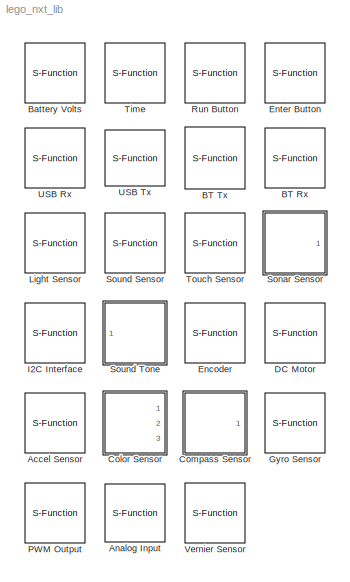
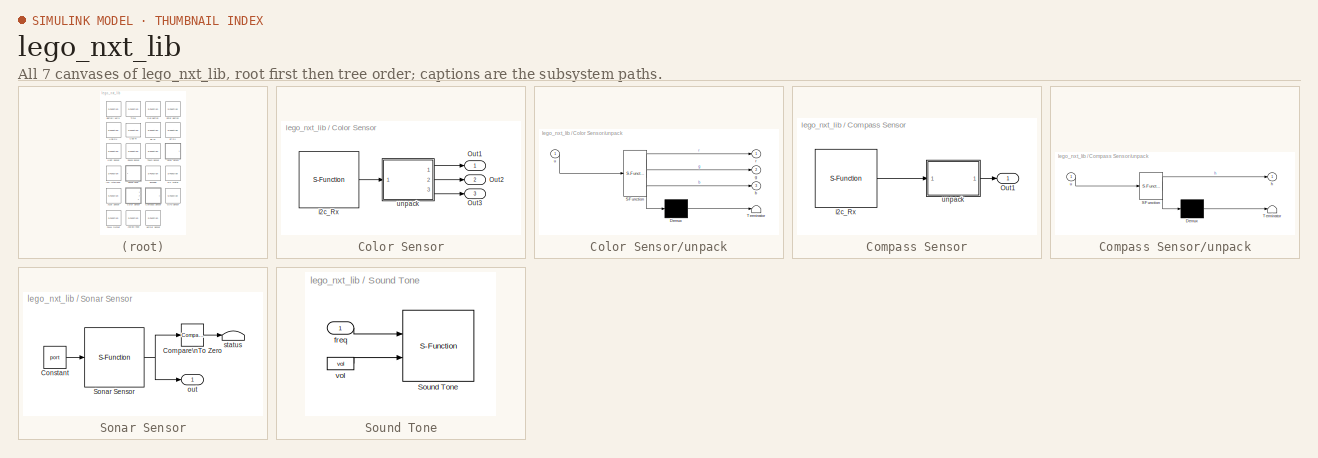
[diagram: thumbnail index - all 7 canvases of the model, root first then tree order]
MODEL lego_nxt_lib
KIND library
BLOCK [S-Function] Accel Sensor
  EnableBusSupport = off
  FunctionName = sfun_OSEK_HT_accel
  MaskCallbackString = |
  MaskDescription = Outputs acceleration data in three axes (x, y and z) [uint16] representing forward, lateral and vertical directions respectively.  The outputs are given in the range 0 to 1023 with a scale factor of ~200 units per g.
  MaskDisplay = image(imread('ht.jpg'))\nport_label('output', 1, 'x')\nport_label('output', 2, 'y')\nport_label('output', 3, 'z')\ntext(0.1,0.15,'1')
  MaskEnableString = on,on
  MaskHelp = The <b>Acceleration Sensor</b> block is an interface for the HiTechnic\nAccelerometer for the Lego NXT brick.  This sensor can detect values in\nthree axes: x (or pitch), y (or roll) and z.  Pitch represents the angle \nabove or below the horizontal, while roll represents the angle left or\nright of perfectly vertical.  The z-axis represents lean forward or\nbackward.
  MaskIconFrame = on
  MaskIconOpaque = on
  MaskIconRotate = none
  MaskIconUnits = normalized
  MaskInitialization = port_disp(gcb)
  MaskPortRotate = default
  MaskPromptString = Port: |Sample time (-1 for inherited):
  MaskSelfModifiable = on
  MaskStyleString = popup(Port 1|Port 2|Port 3|Port 4),edit
  MaskToolTipString = on,on
  MaskTunableValueString = on,on
  MaskType = HiTechnic Acceleration Sensor
  MaskValueString = Port 1|-1
  MaskVariables = port=@1;st=@2;
  MaskVisibilityString = on,on
  Parameters = port, st
  Ports = [0, 3]
  SID = 1
BLOCK [S-Function] Analog Input
  EnableBusSupport = off
  FunctionName = sfun_OSEK_GAI
  MaskCallbackString = |set_param(gcb,'MaskEnables',{'on','on','off','off','off','on'});\ntemp = get_param(gcb, 'MaskValues');\nswitch get_param(gcb,'units')\n%NOTE: These are in no particular order as of now\n    case 'Raw ADC count [uint16]; range [0 1023]'\n        temp{3} = '1';\n        temp{4} = '0';\n        temp{5} = '0';\n    case 'Voltage [int16]; range [0 5]V'\n        temp{3} = '.00489';\n        temp{4} = '...<+518ch>
  MaskDescription = y = ((ADC count)*Gain + Intercept) / 100000.\nThe linear gain and intercept calibration constants are automatically defined for any specified sensor, but may be entered manually for the 'User Defined' measurement option.
  MaskDisplay = text(0.1,0.15,'3');\ndisp('Raw ADC Count');
  MaskEnableString = on,on,off,off,off,on
  MaskHelp = The <b>Generic Analog Input</b> block is an interface for most of the \nMindstorms sensors for the Lego NXT brick. \n\nThe calibrated output, y, uses linear scaling according to: y = ((ADC count)*Gain + Intercept) / 100000\n\nThe relevant values are set automatically according to Mindstorms' documentation which may be found <a href=\"http://lejos-osek.sourceforge.net/ecrobot_c_api_frame.htm\">here...<+6ch>
  MaskIconFrame = on
  MaskIconOpaque = on
  MaskIconRotate = none
  MaskIconUnits = normalized
  MaskInitialization = port_disp(gcb)\nsens_disp(gcb)
  MaskPortRotate = default
  MaskPromptString = Port:|Units of Measure:|Gain:|Intercept:|Signed output|Sample time (-1 for inherited)
  MaskSelfModifiable = on
  MaskStyleString = popup(Port 1|Port 2|Port 3|Port 4),popup(User defined|Raw ADC count [uint16]; range [0 1023]|Voltage [int16]; range [0 5]V|Light Intensity [uint16]; range [0 1023]|Sound Intensity [uint16]; range [0 1023]),edit,edit,edit,edit
  MaskToolTipString = on,on,on,on,on,on
  MaskTunableValueString = on,on,off,off,off,on
  MaskType = Generic Analog Input for Mindstorms
  MaskValueString = Port 3|Raw ADC count [uint16]; range [0 1023]|1|0|0|-1
  MaskVariables = port=@1;units=@2;gain=@3;intercept=@4;sign=@5;st=@6;
  MaskVisibilityString = on,on,on,on,off,on
  Parameters = port,gain,intercept,sign,st
  Ports = [0, 1]
  SID = 66
BLOCK [S-Function] BT Rx
  AncestorBlock = lego_nxt_lib/USB Rx
  EnableBusSupport = off
  FunctionName = sfun_OSEK_btinterface_r
  MaskCallbackString = |switch (get_param(gcb,'mos')) \n    case 'Slave'\n    set_param(gcb,'MaskEnables',{'on','on','off','on'});\n    set_param(gcb,'MaskVisibilities',{'on','on','off','on'});\n    case 'Master'\n    set_param(gcb,'MaskEnables',{'on','on','on','on'});\n    set_param(gcb,'MaskVisibilities',{'on','on','on','on'});\nend\n\n||
  MaskDescription = Receives uint8 vector data via Bluetooth connection. The 'size' secondary output returns the number of bytes received in the last transmission [uint8].  Do not send more than 32 bytes in one timestep; doing so may cause unexpected functionality.
  MaskDisplay = image(imread('bt.jpg'), [.2,.1,.6,.8])\nport_label('output', 1, 'Rx')\nport_label('output', 2, 'size')
  MaskEnableString = on,on,off,on
  MaskHelp = The <b>BT Rx Interface</b> block allows the Lego NXT brick to easily recieve\ndata from an outside machine via Bluetooth. This block should be used only once \nin a model. It can only receive byte vectors (uint8 vectors). The size\noutput gives the size of the vector received from the current connection.\nMax vector size for recieve is 32 bytes
  MaskIconFrame = on
  MaskIconOpaque = on
  MaskIconRotate = none
  MaskIconUnits = normalized
  MaskPortRotate = default
  MaskPromptString = Initial Output [32x1]uint8:|Master or Slave|Slave Device Address:|Sample Time (-1 for inherited):
  MaskStyleString = edit,popup(Master|Slave),edit,edit
  MaskToolTipString = on,on,on,on
  MaskTunableValueString = on,on,on,on
  MaskType = Bluetooth Rx Interface
  MaskValueString = zeros(32,1,'uint8')|Slave|0|-1
  MaskVariables = init_y0=@1;mos=@2;ip=@3;st=@4;
  MaskVisibilityString = on,on,off,on
  Parameters = init_y0, st
  Ports = [0, 2]
  SID = 87
BLOCK [S-Function] BT Tx
  EnableBusSupport = off
  FunctionName = sfun_OSEK_btinterface_t
  MaskCallbackString = switch (get_param(gcb,'mos')) \n    case 'Slave'\n    set_param(gcb,'MaskEnables',{'on','off'});\n    set_param(gcb,'MaskVisibilities',{'on','off'});\n    case 'Master'\n    set_param(gcb,'MaskEnables',{'on','on'});\n    set_param(gcb,'MaskVisibilities',{'on','on'});\nend\n|
  MaskDescription = Transmits uint8 vector data via Bluetooth connection. Do not send more than 64 bytes in one timestep; doing so may cause unexpected functionality.
  MaskDisplay = image(imread('bt.jpg'), [.2,.1,.6,.8])\nport_label('input', 1, 'Tx')
  MaskEnableString = on,off
  MaskHelp = The <b>BT Tx Interface</b> block allows the Lego NXT brick to easily transmit\ndata to an outside machine via Bluetooth. This block should be used only once\nin a model. It can only transmit byte vectors (uint8 vectors). Max vector \nsize for transmit is 32 bytes.
  MaskIconFrame = on
  MaskIconOpaque = on
  MaskIconRotate = none
  MaskIconUnits = normalized
  MaskPortRotate = default
  MaskPromptString = Master or Slave:|Slave Device Address:
  MaskStyleString = popup(Master|Slave),edit
  MaskToolTipString = on,on
  MaskTunableValueString = on,on
  MaskType = Bluetooth Tx Interface
  MaskValueString = Slave|0
  MaskVariables = mos=&1;ip=@2;
  MaskVisibilityString = on,off
  Ports = [1]
  SID = 74
BLOCK [S-Function] Battery Volts
  EnableBusSupport = off
  FunctionName = sfun_OSEK_getbattvoltage
  MaskDescription = Outputs current source voltage of battery in mV [uint16].
  MaskDisplay = image(imread('volt.jpg'),[.2,.2,.6,.6],'on')
  MaskEnableString = on
  MaskHelp = The <b>Battery Voltage</b> block will output the current source voltage at \nthe battery in mV.  For example, an output of 9000 represents 9.0 V.  \nMaximum value is ideally 9000.
  MaskIconFrame = on
  MaskIconOpaque = on
  MaskIconRotate = none
  MaskIconUnits = normalized
  MaskPortRotate = default
  MaskPromptString = Sample time (-1 for inherited):
  MaskStyleString = edit
  MaskToolTipString = on
  MaskTunableValueString = on
  MaskType = Battery Voltage
  MaskValueString = -1
  MaskVariables = st=@1;
  MaskVisibilityString = on
  Parameters = st
  Ports = [0, 1]
  SID = 10
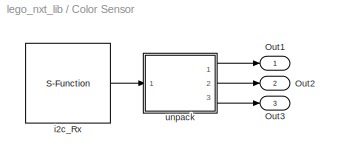
BLOCK [SubSystem] Color Sensor
  FunctionWithSeparateData = off
  MaskCallbackString = |
  MaskDescription = Outputs red, green, and blue color saturation values [int16]. Values of each element range from 0-255.
  MaskDisplay = image(imread('htc.jpg'))\ntext(0.1,0.15,'1')\nport_label('output', 1, 'r')\nport_label('output', 2, 'g')\nport_label('output', 3, 'b')
  MaskEnableString = on,on
  MaskHelp = The <b>Color Sensor </b> block reads raw data from a color sensor and\nextracts the RGB value of a color from that data. The values of each hue are\nranged between 0 and 255, as per normal RGB format. This block does not\nimplement the \"color number\" format supported by the color sensor.
  MaskHideContents = off
  MaskIconFrame = on
  MaskIconOpaque = on
  MaskIconRotate = none
  MaskIconUnits = normalized
  MaskInitialization = port_disp(gcb)
  MaskPortRotate = default
  MaskPromptString = Port:|Sample time (-1 for inherited)
  MaskSelfModifiable = on
  MaskStyleString = popup(Port 1|Port 2|Port 3|Port 4),edit
  MaskToolTipString = on,on
  MaskTunableValueString = on,on
  MaskType = HiTechnic Color Sensor V2
  MaskValueString = Port 1|-1
  MaskVariables = port=@1;st=@2;
  MaskVisibilityString = on,on
  MinAlgLoopOccurrences = off
  Opaque = off
  Ports = [0, 3]
  PropExecContextOutsideSubsystem = off
  RTWSystemCode = Auto
  RequestExecContextInheritance = off
  SID = 59
BLOCK [Outport] Color Sensor/Out1
  IconDisplay = Port number
  SID = 62
BLOCK [Outport] Color Sensor/Out2
  IconDisplay = Port number
  Port = 2
  SID = 63
BLOCK [Outport] Color Sensor/Out3
  IconDisplay = Port number
  Port = 3
  SID = 64
BLOCK [S-Function] Color Sensor/i2c_Rx
  EnableBusSupport = off
  FunctionName = sfun_OSEK_i2c_recieve
  Parameters = port,1,66,14,st
  Ports = [0, 1]
  SID = 60
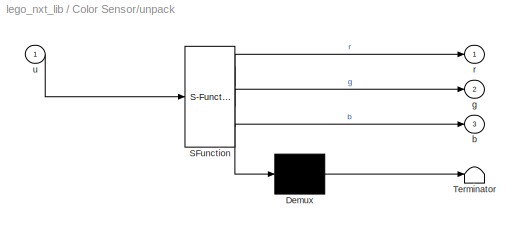
BLOCK [SubSystem] Color Sensor/unpack
  ErrorFcn = Stateflow.Translate.translate
  FunctionWithSeparateData = off
  MaskDescription = Embedded MATLAB block
  MaskDisplay = disp('unpack');
  MaskHideContents = off
  MaskIconFrame = on
  MaskIconOpaque = off
  MaskIconRotate = none
  MaskIconUnits = normalized
  MaskPortRotate = default
  MaskSelfModifiable = on
  MaskType = Stateflow
  MinAlgLoopOccurrences = off
  Opaque = off
  PermitHierarchicalResolution = ExplicitOnly
  Ports = [1, 3]
  PropExecContextOutsideSubsystem = off
  RTWSystemCode = Auto
  RequestExecContextInheritance = off
  SID = 61
  TreatAsAtomicUnit = on
BLOCK [Demux] Color Sensor/unpack/ Demux 
  Outputs = 1
  Ports = [1, 1]
  SID = 61
BLOCK [S-Function] Color Sensor/unpack/ SFunction 
  EnableBusSupport = off
  FunctionName = sf_sfun
  PortCounts = [1 4]
  Ports = [1, 4]
  SID = 61
  Tag = Stateflow S-Function lego_nxt_lib 1
BLOCK [Terminator] Color Sensor/unpack/ Terminator 
  SID = 61
BLOCK [Outport] Color Sensor/unpack/b
  IconDisplay = Port number
  Port = 3
  SID = 61
BLOCK [Outport] Color Sensor/unpack/g
  IconDisplay = Port number
  Port = 2
  SID = 61
BLOCK [Outport] Color Sensor/unpack/r
  IconDisplay = Port number
  SID = 61
BLOCK [Inport] Color Sensor/unpack/u
  IconDisplay = Port number
  SID = 61
BLOCK [SubSystem] Compass Sensor
  FunctionWithSeparateData = off
  MaskCallbackString = |
  MaskDescription = Outputs directional data [S16] relative to the closest magnetic source (or magnetic north, by default) in the range of [1,179].
  MaskDisplay = image(imread('ht.jpg'))\ntext(0.1,0.15,'1')
  MaskEnableString = on,on
  MaskHelp = The <b>Compass Sensor</b> block is an interface for HiTechnic's Compass\nfor the Lego NXT brick.  This sensor determines the direction your robot is\npointing, which is referred to as the compass heading. The compass outputs\na range of values from 1-179, which equals the compass heading divided\nby 2. The compass may be subject to interference from other magnetic\ndevices, including the brick and...<+111ch>
  MaskHideContents = off
  MaskIconFrame = on
  MaskIconOpaque = on
  MaskIconRotate = none
  MaskIconUnits = normalized
  MaskInitialization = port_disp(gcb)
  MaskPortRotate = default
  MaskPromptString = Port:|Sample time (-1 for inherited):
  MaskSelfModifiable = on
  MaskStyleString = popup(Port 1|Port 2|Port 3|Port 4),edit
  MaskToolTipString = on,on
  MaskTunableValueString = on,on
  MaskType = HiTechnic Compass Sensor
  MaskValueString = Port 1|-1
  MaskVariables = port=@1;st=@2;
  MaskVisibilityString = on,on
  MinAlgLoopOccurrences = off
  Opaque = off
  Ports = [0, 1]
  PropExecContextOutsideSubsystem = off
  RTWSystemCode = Auto
  RequestExecContextInheritance = off
  SID = 48
BLOCK [Outport] Compass Sensor/Out1
  IconDisplay = Port number
  SID = 51
BLOCK [S-Function] Compass Sensor/i2c_Rx
  EnableBusSupport = off
  FunctionName = sfun_OSEK_i2c_recieve
  Parameters = port,1,65,5,st
  Ports = [0, 1]
  SID = 49
BLOCK [SubSystem] Compass Sensor/unpack
  ErrorFcn = Stateflow.Translate.translate
  FunctionWithSeparateData = off
  MaskDescription = Embedded MATLAB block
  MaskDisplay = disp('unpack');
  MaskHideContents = off
  MaskIconFrame = on
  MaskIconOpaque = off
  MaskIconRotate = none
  MaskIconUnits = normalized
  MaskPortRotate = default
  MaskSelfModifiable = on
  MaskType = Stateflow
  MinAlgLoopOccurrences = off
  Opaque = off
  PermitHierarchicalResolution = ExplicitOnly
  Ports = [1, 1]
  PropExecContextOutsideSubsystem = off
  RTWSystemCode = Auto
  RequestExecContextInheritance = off
  SID = 50
  TreatAsAtomicUnit = on
BLOCK [Demux] Compass Sensor/unpack/ Demux 
  Outputs = 1
  Ports = [1, 1]
  SID = 50
BLOCK [S-Function] Compass Sensor/unpack/ SFunction 
  EnableBusSupport = off
  FunctionName = sf_sfun
  PortCounts = [1 2]
  Ports = [1, 2]
  SID = 50
  Tag = Stateflow S-Function lego_nxt_lib 2
BLOCK [Terminator] Compass Sensor/unpack/ Terminator 
  SID = 50
BLOCK [Outport] Compass Sensor/unpack/h
  IconDisplay = Port number
  SID = 50
BLOCK [Inport] Compass Sensor/unpack/u
  IconDisplay = Port number
  SID = 50
BLOCK [S-Function] DC Motor
  EnableBusSupport = off
  FunctionName = sfun_OSEK_servosimple
  MaskCallbackString = |
  MaskDescription = Sets the applied motor voltage [int8] as a percentage (in the range -100..100) of battery voltage.  Applying a negative voltage will cause the motor to turn in the reverse direction.  Note that motor speed depends not only on applied voltage, but also on motor load.
  MaskDisplay = image(imread('servo.jpg'))\ntext(0.1,0.15,'A')
  MaskEnableString = on,on
  MaskHelp = The <b>DC Motor</b> block is a simplified interface for setting\nServo Motor speed.
  MaskIconFrame = on
  MaskIconOpaque = on
  MaskIconRotate = none
  MaskIconUnits = normalized
  MaskInitialization = port_disp(gcb)
  MaskPortRotate = default
  MaskPromptString = Port: |When power=0...
  MaskSelfModifiable = on
  MaskStyleString = popup(Port A|Port B|Port C),popup(Coast|Brake)
  MaskToolTipString = on,on
  MaskTunableValueString = on,on
  MaskType = Servo Motor (Simple)
  MaskValueString = Port A|Coast
  MaskVariables = port=@1;brake=@2;
  MaskVisibilityString = on,on
  Parameters = port,brake
  Ports = [1]
  SID = 1
BLOCK [S-Function] Encoder
  EnableBusSupport = off
  FunctionName = sfun_OSEK_servorev
  MaskCallbackString = |
  MaskDescription = Counts encoder pulses and outputs the motor rotation angle [int32] in degrees relative to the motor's angular position when the model was started.
  MaskDisplay = image(imread('servo.jpg'))\ntext(0.1,0.15,'A')
  MaskEnableString = on,on
  MaskHelp = The <b>Encoder</b> block is a simplified interface for getting the\nrevolution count of a Lego NXT Servo Motor.
  MaskIconFrame = on
  MaskIconOpaque = on
  MaskIconRotate = none
  MaskIconUnits = normalized
  MaskInitialization = port_disp(gcb)
  MaskPortRotate = default
  MaskPromptString = Port: |Sample time (-1 for inherited):
  MaskSelfModifiable = on
  MaskStyleString = popup(Port A|Port B|Port C),edit
  MaskToolTipString = on,on
  MaskTunableValueString = on,on
  MaskType = Encoder
  MaskValueString = Port A|-1
  MaskVariables = port=@1;st=@2;
  MaskVisibilityString = on,on
  Parameters = port, st
  Ports = [0, 1]
  SID = 1
BLOCK [S-Function] Enter Button
  EnableBusSupport = off
  FunctionName = sfun_OSEK_enterbutton
  MaskDescription = Outputs 1 if enter button is pressed, else 0 [uint8].
  MaskDisplay = image(imread('enter.jpg'))
  MaskEnableString = on
  MaskHelp = The <b>Enter Button</b> block is an interface for the Lego NXT brick's\n'Enter' button, or orange button.  This block will output a 1 when the\norange button is pressed, and a 0 when the button is unpressed.
  MaskIconFrame = on
  MaskIconOpaque = on
  MaskIconRotate = none
  MaskIconUnits = autoscale
  MaskPortRotate = default
  MaskPromptString = Sample time (-1 for inherited):
  MaskStyleString = edit
  MaskToolTipString = on
  MaskTunableValueString = on
  MaskType = Enter Button
  MaskValueString = -1
  MaskVariables = st=@1;
  MaskVisibilityString = on
  Parameters = st
  Ports = [0, 1]
  SID = 6
BLOCK [S-Function] Gyro Sensor
  EnableBusSupport = off
  FunctionName = sfun_OSEK_HT_gyroscope
  MaskCallbackString = |
  MaskDescription = Outputs raw A/D gyroscope data [uint16] in the vertical direction in the range of 0..1023 (offset of ~615).  Output is equal to offset plus or minus rotation in degrees/second.
  MaskDisplay = image(imread('ht.jpg'))\ntext(0.1,0.15,'1')
  MaskEnableString = on,on
  MaskHelp = The <b>Gyroscopic Sensor</b> block is an interface for HiTechnic's Gyroscope\nfor the Lego NXT brick.  This sensor detects change in angle at a rate of\nup to plus or minus 360 degrees per second, and can be read up to 300 times\nper second.  This sensor operates with an offset of ~615, meaning that the\nsensor will output a value of 615 when at complete rest.  Its output values\nrange from 0 to 1...<+4ch>
  MaskIconFrame = on
  MaskIconOpaque = on
  MaskIconRotate = none
  MaskIconUnits = normalized
  MaskInitialization = port_disp(gcb)
  MaskPortRotate = default
  MaskPromptString = Port: |Sample time (-1 for inherited):
  MaskSelfModifiable = on
  MaskStyleString = popup(Port 1|Port 2|Port 3|Port 4),edit
  MaskToolTipString = on,on
  MaskTunableValueString = on,on
  MaskType = HiTechnic Gyroscopic Sensor
  MaskValueString = Port 1|-1
  MaskVariables = port=@1;st=@2;
  MaskVisibilityString = on,on
  Parameters = port, st
  Ports = [0, 1]
  SID = 12
BLOCK [S-Function] I2C Interface 
  EnableBusSupport = off
  FunctionName = sfun_OSEK_i2c_recieve
  MaskCallbackString = ||||
  MaskDescription = Outputs data [uint8] read from a slave device of the I2C. Content and width of the output depend on the type of device. This block only supports reading; for writing, use the Tx block.
  MaskDisplay = image(imread('iic.jpg'))\ntext(0.1,0.15,'1')\nport_label('output',1,'Rx')
  MaskEnableString = on,on,on,on,on
  MaskHelp = The <b>I2C Bus Interface (Rx) </b> block facilitates the reception of data from\ndevices linked to the Lego NXT brick through the I2C. Based on the device\nit is linked to, it creates and outputs a data buffer with information read\nfrom the device.  It is recommened that this block be used in tandem with a\nMATLAB Embedded Fucntion or any other block that can process the data buffer
  MaskIconFrame = on
  MaskIconOpaque = on
  MaskIconRotate = none
  MaskIconUnits = normalized
  MaskInitialization = port_disp(gcb)
  MaskPortRotate = default
  MaskPromptString = Port:|Address:|Internal Register (in decimal):|Buffer Length:|Sample Time (-1 for inherited)
  MaskSelfModifiable = on
  MaskStyleString = popup(Port 1|Port 2|Port 3|Port 4),edit,edit,edit,edit
  MaskToolTipString = on,on,on,on,on
  MaskTunableValueString = on,on,on,on,on
  MaskType = I2C Bus Interface (Rx)
  MaskValueString = Port 1|1|68|2|-1
  MaskVariables = port=@1;addr=@2;intreg=@3;buflen=@4;st=@5;
  MaskVisibilityString = on,on,on,on,on
  Parameters = port,addr,intreg,buflen,st
  Ports = [0, 1]
  SID = 65
BLOCK [S-Function] Light Sensor
  EnableBusSupport = off
  FunctionName = sfun_OSEK_lightsensor
  MaskCallbackString = |
  MaskDescription = Outputs a measure of the sensed light on a scale of 0 (dark) to 1023 (bright) [uint16].
  MaskDisplay = image(imread('light.jpg'))\ntext(0.1,0.15,'1')
  MaskEnableString = on,on
  MaskHelp = The <b>Light Sensor</b> block is an interface for the Lego NXT brick's\nLight Sensor.  This block gives raw A/D output directly from the sensor,\nafter inverting the data.  In this block, 1023 is the value which\nrepresents the brightest or most reflective surface, while a 0 represents\nthe darkest or dullest surface.
  MaskIconFrame = on
  MaskIconOpaque = on
  MaskIconRotate = none
  MaskIconUnits = normalized
  MaskInitialization = port_disp(gcb)
  MaskPortRotate = default
  MaskPromptString = Port: |Sample time (-1 for inherited):
  MaskSelfModifiable = on
  MaskStyleString = popup(Port 1|Port 2|Port 3|Port 4),edit
  MaskToolTipString = on,on
  MaskTunableValueString = on,on
  MaskType = Light Sensor
  MaskValueString = Port 1|-1
  MaskVariables = port=@1;st=@2;
  MaskVisibilityString = on,on
  Parameters = port, st
  Ports = [0, 1]
  SID = 4
BLOCK [S-Function] PWM Output
  AncestorBlock = Copy_of_lego_nxt_lib/PWM
  EnableBusSupport = off
  FunctionName = sfun_OSEK_PWM
  MaskCallbackString = |
  MaskDescription = Sets the applied PWM duty cycle [uint8] in the range [0..100]. The PWM amplitude is defined by the battery voltage.  The PWM signal appears between pins 1 and 2 of the specified output port.  The voltage polarity is reversed if the 'reverse polarity' checkbox is selected.
  MaskDisplay = text(0.35,0.5,'PWM')\ntext(0.1,0.15,'A')
  MaskEnableString = on,on
  MaskHelp = The <b>PWM Output</b> block is a masked version of the DC Motor block
  MaskIconFrame = on
  MaskIconOpaque = on
  MaskIconRotate = none
  MaskIconUnits = normalized
  MaskInitialization = port_disp(gcb)
  MaskPortRotate = default
  MaskPromptString = Port: |Reverse Polarity
  MaskSelfModifiable = on
  MaskStyleString = popup(Port A|Port B|Port C),checkbox
  MaskToolTipString = on,on
  MaskTunableValueString = on,on
  MaskType = PWM Output
  MaskValueString = Port A|off
  MaskVariables = port=@1;reverse=@2;
  MaskVisibilityString = on,on
  Parameters = port,reverse
  Ports = [1]
  SID = 47
BLOCK [S-Function] Run Button
  EnableBusSupport = off
  FunctionName = sfun_OSEK_runbutton
  MaskDescription = Outputs 1 if run button is pressed, else 0 [uint8].
  MaskDisplay = image(imread('run.jpg'))
  MaskEnableString = on
  MaskHelp = The <b>Run Button<b> block is an interface for the Lego NXT brick's 'run'\nbutton, or the gray button to the right of the center orange button.  This\nblock will output a 1 if this button is pressed, and a 0 if this button is\nunpressed.
  MaskIconFrame = on
  MaskIconOpaque = on
  MaskIconRotate = none
  MaskIconUnits = autoscale
  MaskPortRotate = default
  MaskPromptString = Sample time (-1 for inherited):
  MaskStyleString = edit
  MaskToolTipString = on
  MaskTunableValueString = on
  MaskType = Run Button
  MaskValueString = -1
  MaskVariables = st=@1;
  MaskVisibilityString = on
  Parameters = st
  Ports = [0, 1]
  SID = 7
BLOCK [SubSystem] Sonar Sensor
  FunctionWithSeparateData = off
  MaskCallbackString = |switch get_param(gcb,'statussrc')\n    case 'Show'\n        set_param(gcb,'MaskDisplay',sprintf('image(imread(''sonar.jpg''))\\ntext(0.1,0.15,''1'')\\nport_label(''output'',2,''size'')'));\n    case 'Hide'\n        set_param(gcb,'MaskDisplay',sprintf('image(imread(''sonar.jpg''))\\ntext(0.1,0.15,''1'')'));\nend|
  MaskDescription = Outputs the distance (in range 0..255cm) [int16] to the closest object in view. If sensor is not ready, the output distance is set to -1 and the optional 'ready' status output port [boolean] is set to 0.
  MaskDisplay = image(imread('sonar.jpg'))\ntext(0.1,0.15,'1')
  MaskEnableString = on,on,on
  MaskHelp = The <b>Sonar Sensor</b> block is an interface for the Lego NXT brick's\nUltrasonic Sensor.  It outputs a value between -1 and 255, which represents\nthe distance to the closest sensed object in centimeters (or -1 if the\nsensor is not ready to output).  The sensor also has a 'ready flag' output,\nwhich will output 1 if the sensor is ready, and 0 if it is not ready.
  MaskHideContents = off
  MaskIconFrame = on
  MaskIconOpaque = off
  MaskIconRotate = none
  MaskIconUnits = normalized
  MaskInitialization = status_cb(gcb,statussrc)\nport_disp(gcb)
  MaskPortRotate = default
  MaskPromptString = Port:|Ready Status Output:|Sample time (-1 for inherited):
  MaskSelfModifiable = on
  MaskStyleString = popup(Port 1|Port 2|Port 3|Port 4),popup(Show|Hide),edit
  MaskToolTipString = on,on,on
  MaskTunableValueString = on,off,on
  MaskType = Sonar Sensor
  MaskValueString = Port 1|Hide|-1
  MaskVariables = port=@1;statussrc=&2;st=@3;
  MaskVisibilityString = on,on,on
  MinAlgLoopOccurrences = off
  Opaque = off
  Ports = [0, 1]
  PropExecContextOutsideSubsystem = off
  RTWSystemCode = Auto
  RequestExecContextInheritance = off
  SID = 40
BLOCK [Reference] Sonar Sensor/Compare\nTo Zero  REF=simulink/Logic and Bit\nOperations/Compare\nTo Zero
  FunctionWithSeparateData = off
  GeneratePreprocessorConditionals = off
  LogicOutDataTypeMode = boolean
  Ports = [1, 1]
  RTWMemSecDataConstants = Inherit from model
  RTWMemSecDataInternal = Inherit from model
  RTWMemSecDataParameters = Inherit from model
  RTWMemSecFuncExecute = Inherit from model
  RTWMemSecFuncInitTerm = Inherit from model
  SID = 40
  ShowPortLabels = FromPortIcon
  SourceBlock = simulink/Logic and Bit\nOperations/Compare\nTo Zero
  SourceType = Compare To Zero
  SystemSampleTime = -1
  ZeroCross = on
  relop = >=
BLOCK [Constant] Sonar Sensor/Constant
  SID = 40
  SampleTime = st
  Value = port
BLOCK [S-Function] Sonar Sensor/Sonar Sensor
  EnableBusSupport = off
  FunctionName = sfun_OSEK_sonarsensor
  Parameters = st
  Ports = [1, 1]
  SID = 40
BLOCK [Outport] Sonar Sensor/out
  IconDisplay = Port number
  SID = 40
BLOCK [Terminator] Sonar Sensor/status
  SID = 40
BLOCK [S-Function] Sound Sensor
  EnableBusSupport = off
  FunctionName = sfun_OSEK_noisesensor
  MaskCallbackString = |
  MaskDescription = Outputs a measure of the sensed sound on a scale of 0 (quiet) to 1023 (loud) [uint16].
  MaskDisplay = image(imread('sound.jpg'))\ntext(0.1,0.15,'1')
  MaskEnableString = on,on
  MaskHelp = The <b>Sound Sensor</b> block is an interface for the Lego NXT brick's\nSound Sensor.  Outputs range from 0 to 1023, where 1023 is the loudest\npossible sound and 0 is complete silence.
  MaskIconFrame = on
  MaskIconOpaque = on
  MaskIconRotate = none
  MaskIconUnits = normalized
  MaskInitialization = port_disp(gcb)
  MaskPortRotate = default
  MaskPromptString = Port: |Sample time (-1 for inherited):
  MaskSelfModifiable = on
  MaskStyleString = popup(Port 1|Port 2|Port 3|Port 4),edit
  MaskToolTipString = on,on
  MaskTunableValueString = on,on
  MaskType = Sound Sensor
  MaskValueString = Port 1|-1
  MaskVariables = port=@1;st=@2;
  MaskVisibilityString = on,on
  Parameters = port, st
  Ports = [0, 1]
  SID = 3
BLOCK [SubSystem] Sound Tone
  FunctionWithSeparateData = off
  MaskCallbackString = en = get_param(gcb,'MaskEnables');\nvis = get_param(gcb,'MaskVisibilities');\nswitch get_param(gcb,'freqsrc')\n  case 'External'\n    en{2} = 'off';\n    vis{2} = 'off';\n  case 'Internal'\n    en{2} = 'on';\n    vis{2} = 'on';\nend\nset_param(gcb,'MaskEnables',en)\nset_param(gcb,'MaskVisibilities',vis)||en = get_param(gcb,'MaskEnables');\nvis = get_param(gcb,'MaskVisibilities');\nswitch get_param...<+210ch>
  MaskDescription = Sounds a tone from the Lego NXT brick.  The frequency [uint32] and volume [uint8] can be defined either internally as fixed parameter values, or externally as time-varying input signals.
  MaskDisplay = image(imread('tone.jpg'));\nport_label('input',1,'freq')\n
  MaskEnableString = on,off,on,on
  MaskHelp = The <b>Sound Tone</b> block is a flexible interface for the Lego NXT\nbrick's onboard speaker. Each argument (frequency and volume) can be\nsent to the block as an input or a parameter. The frequency input should be\na value between 31 and 2100 (these are audible). The final argument, volume, is a\nvalue between 0 and 100.
  MaskHideContents = off
  MaskIconFrame = on
  MaskIconOpaque = off
  MaskIconRotate = none
  MaskIconUnits = normalized
  MaskInitialization = voltone_cb(gcb,volsrc,vol,freqsrc,freq);
  MaskPortRotate = default
  MaskPromptString = Frequency Source:|Frequency (in range 31..2100 Hz):|Volume Source: |Volume (in range 0..100):
  MaskSelfModifiable = on
  MaskStyleString = popup(External|Internal),edit,popup(External|Internal),edit
  MaskToolTipString = on,on,on,on
  MaskTunableValueString = off,on,off,on
  MaskType = Sound Tone
  MaskValueString = External|0|Internal|70
  MaskVariables = freqsrc=&1;freq=@2;volsrc=&3;vol=@4;
  MaskVisibilityString = on,off,on,on
  MinAlgLoopOccurrences = off
  Opaque = off
  Ports = [1]
  PropExecContextOutsideSubsystem = off
  RTWSystemCode = Auto
  RequestExecContextInheritance = off
  SID = 15
BLOCK [S-Function] Sound Tone/Sound Tone
  EnableBusSupport = off
  FunctionName = sfun_OSEK_soundvoltone
  Ports = [2]
  SID = 15
BLOCK [Inport] Sound Tone/freq
  IconDisplay = Port number
  SID = 15
BLOCK [Constant] Sound Tone/vol
  OutDataTypeMode = uint8
  OutDataTypeStr = uint8
  SID = 15
  Value = vol
BLOCK [S-Function] Time
  EnableBusSupport = off
  FunctionName = sfun_OSEK_getms
  MaskDescription = Outputs time in ms since model was started [uint32].
  MaskDisplay = image(imread('clock.jpg'),[.1,.1,.8,.8],'on')
  MaskEnableString = on
  MaskHelp = The <b>System Clock</b> block is an interface for the Lego NXT brick's\nbuilt-in system clock.  This block outputs the 'systick', or the number of\nmilliseconds that have passed since the operating system was loaded.  This\nclock can be reset upon entry into the program by setting its initial\ncondition.  By default, this clock <u>WILL NOT</u> start at 0 upon entry\ninto the program.
  MaskIconFrame = on
  MaskIconOpaque = on
  MaskIconRotate = none
  MaskIconUnits = normalized
  MaskPortRotate = default
  MaskPromptString = Sample time (-1 for inherited):
  MaskStyleString = edit
  MaskToolTipString = on
  MaskTunableValueString = on
  MaskType = System Clock
  MaskValueString = -1
  MaskVariables = st=@1;
  MaskVisibilityString = on
  Parameters = st
  Ports = [0, 1]
  SID = 11
BLOCK [S-Function] Touch Sensor
  EnableBusSupport = off
  FunctionName = sfun_OSEK_touchsensor
  MaskCallbackString = |
  MaskDescription = Outputs 1 if pressed, else 0 [uint8].
  MaskDisplay = image(imread('touch.jpg'))\ntext(0.1,0.15,'1')
  MaskEnableString = on,on
  MaskHelp = The <b>Touch Sensor</b> block is an interface for the Lego NXT brick's\nTouch Sensor button.  When this button is depressed, this block will output\na 1, otherwise it will output a 0.
  MaskIconFrame = on
  MaskIconOpaque = on
  MaskIconRotate = none
  MaskIconUnits = normalized
  MaskInitialization = port_disp(gcb)
  MaskPortRotate = default
  MaskPromptString = Port: |Sample time (-1 for inherited):
  MaskSelfModifiable = on
  MaskStyleString = popup(Port 1|Port 2|Port 3|Port 4),edit
  MaskToolTipString = on,on
  MaskTunableValueString = on,on
  MaskType = Touch Sensor
  MaskValueString = Port 1|-1
  MaskVariables = port=@1;st=@2;
  MaskVisibilityString = on,on
  Parameters = port, st
  Ports = [0, 1]
  SID = 2
BLOCK [S-Function] USB Rx
  EnableBusSupport = off
  FunctionName = sfun_OSEK_usbinterface_r
  MaskCallbackString = |
  MaskDescription = Receives uint8 vector data via USB connection. The 'size' secondary output returns the number of bytes received in the last transmission [uint8].  Do not send more than 64 bytes in one timestep; doing so may cause unexpected functionality.
  MaskDisplay = image(imread('usb.jpg'))\nport_label('output', 1, 'Rx')\nport_label('output', 2, 'size')
  MaskEnableString = on,on
  MaskHelp = The <b>USB Rx Interface</b> block allows the Lego NXT brick to easily recieve\ndata from an outside machine via USB. This block should be used only once \nin a model. It can only receive byte vectors (uint8 vectors). The size\noutput gives the size of the vector received from the current connection.\nMax vector size for recieve is 64 bytes
  MaskIconFrame = on
  MaskIconOpaque = on
  MaskIconRotate = none
  MaskIconUnits = normalized
  MaskPortRotate = default
  MaskPromptString = Initial Output [64x1]uint8:|Sample Time (-1 for inherited):
  MaskStyleString = edit,edit
  MaskToolTipString = on,on
  MaskTunableValueString = on,on
  MaskType = USB Rx Interface
  MaskValueString = zeros(64,1,'uint8')|-1
  MaskVariables = init_y0=@1;st=@2;
  MaskVisibilityString = on,on
  Parameters = init_y0, st
  Ports = [0, 2]
  SID = 78
BLOCK [S-Function] USB Tx
  AncestorBlock = lego_nxt_lib/USB Tx Interface
  EnableBusSupport = off
  FunctionName = sfun_OSEK_usbinterface_t
  MaskDescription = Transmits uint8 vector data via USB connection. Do not send more than 64 bytes in one timestep; doing so may cause unexpected functionality.
  MaskDisplay = image(imread('usb.jpg'))\nport_label('input', 1, 'Tx')
  MaskHelp = The <b>USB Tx Interface</b> block allows the Lego NXT brick to easily transmit\ndata to an outside machine via USB. This block should be used only once in a\nmodel. It can only transmit byte vectors (uint8 vectors). Max vector size \nfor transmit is 64 bytes.
  MaskIconFrame = on
  MaskIconOpaque = on
  MaskIconRotate = none
  MaskIconUnits = autoscale
  MaskPortRotate = default
  MaskType = USB Tx Interface
  Ports = [1]
  SID = 75
BLOCK [S-Function] Vernier Sensor
  EnableBusSupport = off
  FunctionName = sfun_OSEK_GAI_vernier
  MaskCallbackString = |set_param(gcb,'MaskEnables',{'on','on','off','off','off','on'});\ntemp = get_param(gcb, 'MaskValues');\nswitch get_param(gcb,'units')\n%NOTE: These are in no particular order as of now\n    case 'Raw ADC count [uint16]; range [0 1023]'\n        temp{3} = '100000';\n        temp{4} = '0';\n        temp{5} = '0';    \n    case 'Voltage [int16]; range [-6 6]V'\n        temp{3} = '-1283';\n        te...<+1451ch>
  MaskDescription = y = ((ADC count)*Gain + Intercept) / 100000.\nThe linear gain and intercept calibration constants are automatically defined for any specified sensor, but may be entered manually for the 'User Defined' measurement option.\n
  MaskDisplay = text(0.1,0.15,'1');\ndisp('Raw ADC Count');
  MaskEnableString = on,on,off,off,off,on
  MaskHelp = The <b>Generic Analog Input</b> block is an interface for most of the \nVernier sensors for the Lego NXT brick. \n\nThe calibrated output, y, uses linear scaling according to: y = ((ADC count)*Gain + Intercept) / 100000, \nwhere the Gain and Intercept values should be entered as 100,000 times their nominal values to avoid floating point computations and to conform to Vernier's calibration protocol...<+183ch>
  MaskIconFrame = on
  MaskIconOpaque = on
  MaskIconRotate = none
  MaskIconUnits = normalized
  MaskInitialization = port_disp(gcb)\nvsens_disp(gcb)\n
  MaskPortRotate = default
  MaskPromptString = Port:|Units of Measure:|Gain:|Intercept:|Signed output|Sample time(-1 for inherited):
  MaskSelfModifiable = on
  MaskStyleString = popup(Port 1|Port 2|Port 3|Port 4),popup(User defined|Raw ADC count [uint16]; range [0 1023]|Voltage [int16]; range [-6 6]V|Current [int16]; range [-.6 .6]A|Acceleration [int16]; range [-50 50] m/s^2|Force [int16]; range [-10 10]N|Light Intensity [uint16]; range [0 600]lx|Temperature [int16]; range [-50 150]C|Pressure [uint16]; range [0 200]kPa|Air Pressure [uint16]; range [80 110]kPa|Wind Speed [...<+73ch>
  MaskToolTipString = on,on,on,on,on,on
  MaskTunableValueString = on,on,off,off,off,on
  MaskType = Generic Analog Input for Vernier
  MaskValueString = Port 1|Raw ADC count [uint16]; range [0 1023]|100000|0|0|-1
  MaskVariables = port=@1;units=@2;gain=@3;intercept=@4;sign=@5;st=@6;
  MaskVisibilityString = on,on,on,on,off,on
  Parameters = port,gain,intercept,sign,st
  Ports = [0, 1]
  SID = 67
LINE Color Sensor/i2c_Rx:1 -> Color Sensor/unpack:1
LINE Color Sensor/unpack/ Demux :1 -> Color Sensor/unpack/ Terminator :1
LINE Color Sensor/unpack/ SFunction :1 -> Color Sensor/unpack/ Demux :1
LINE Color Sensor/unpack/ SFunction :2 -> Color Sensor/unpack/r:1
LINE Color Sensor/unpack/ SFunction :3 -> Color Sensor/unpack/g:1
LINE Color Sensor/unpack/ SFunction :4 -> Color Sensor/unpack/b:1
LINE Color Sensor/unpack/u:1 -> Color Sensor/unpack/ SFunction :1
LINE Color Sensor/unpack:1 -> Color Sensor/Out1:1
LINE Color Sensor/unpack:2 -> Color Sensor/Out2:1
LINE Color Sensor/unpack:3 -> Color Sensor/Out3:1
LINE Compass Sensor/i2c_Rx:1 -> Compass Sensor/unpack:1
LINE Compass Sensor/unpack/ Demux :1 -> Compass Sensor/unpack/ Terminator :1
LINE Compass Sensor/unpack/ SFunction :1 -> Compass Sensor/unpack/ Demux :1
LINE Compass Sensor/unpack/ SFunction :2 -> Compass Sensor/unpack/h:1
LINE Compass Sensor/unpack/u:1 -> Compass Sensor/unpack/ SFunction :1
LINE Compass Sensor/unpack:1 -> Compass Sensor/Out1:1
LINE Sonar Sensor/Compare\nTo Zero:1 -> Sonar Sensor/status:1
LINE Sonar Sensor/Constant:1 -> Sonar Sensor/Sonar Sensor:1
NET Sonar Sensor/Sonar Sensor:1 -> Sonar Sensor/Compare\nTo Zero:1, Sonar Sensor/out:1
LINE Sound Tone/freq:1 -> Sound Tone/Sound Tone:1
LINE Sound Tone/vol:1 -> Sound Tone/Sound Tone:2
note: NET lines group one-source signal fan-out (src -> all destinations, sorted); 1:1 wires keep LINE
CHART Color Sensor/unpack states=1 transitions=1
  STATE_LABEL 'eML_blk_kernel()'
CHART Compass Sensor/unpack states=1 transitions=1
  STATE_LABEL 'eML_blk_kernel()'
